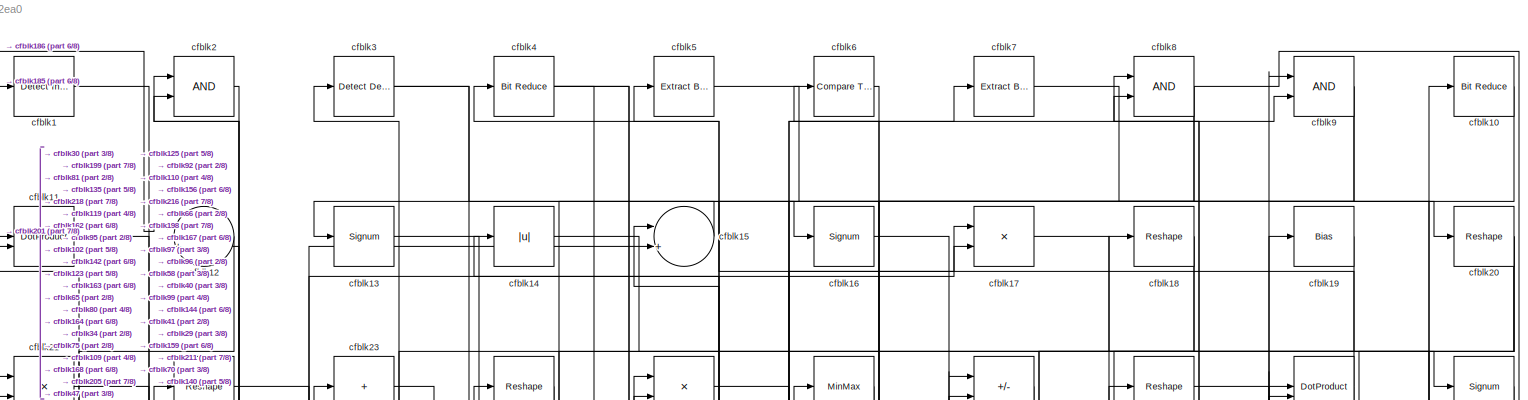
[diagram: root canvas - part 1/8, full width, top band]
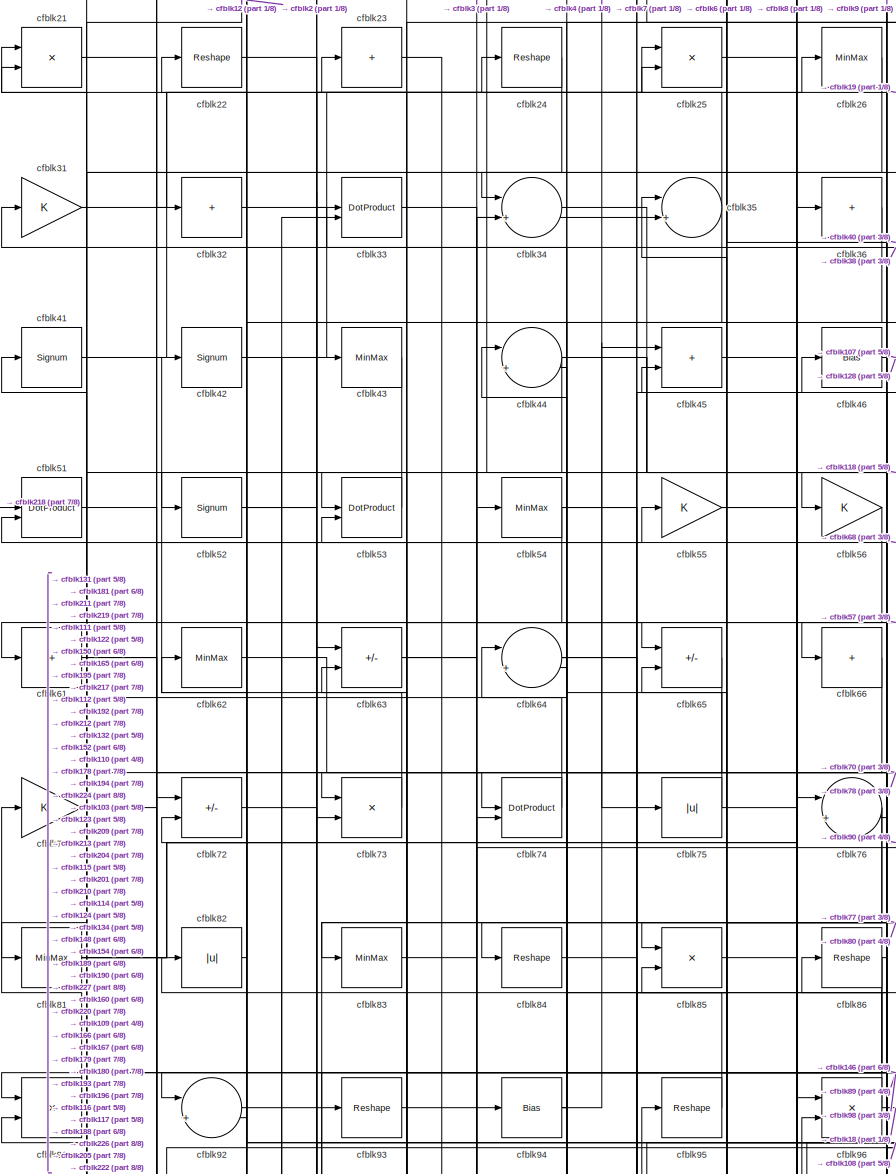
[diagram: root canvas - part 2/8, top left region]
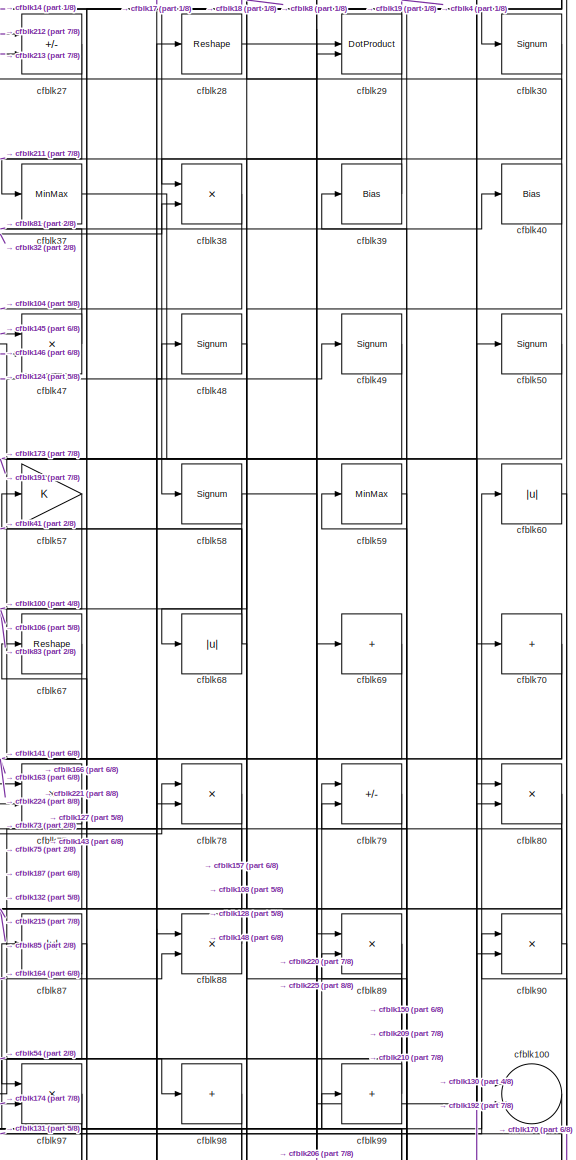
[diagram: root canvas - part 3/8, top right region]
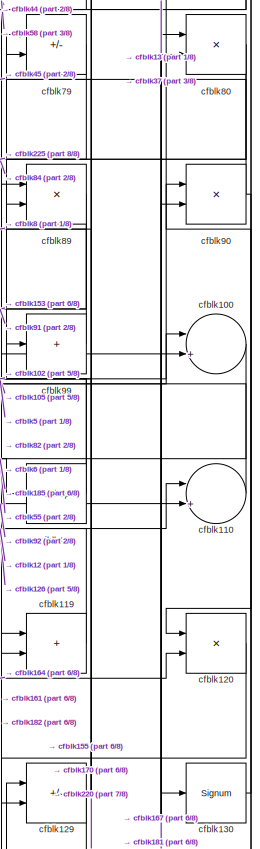
[diagram: root canvas - part 4/8, middle right region]
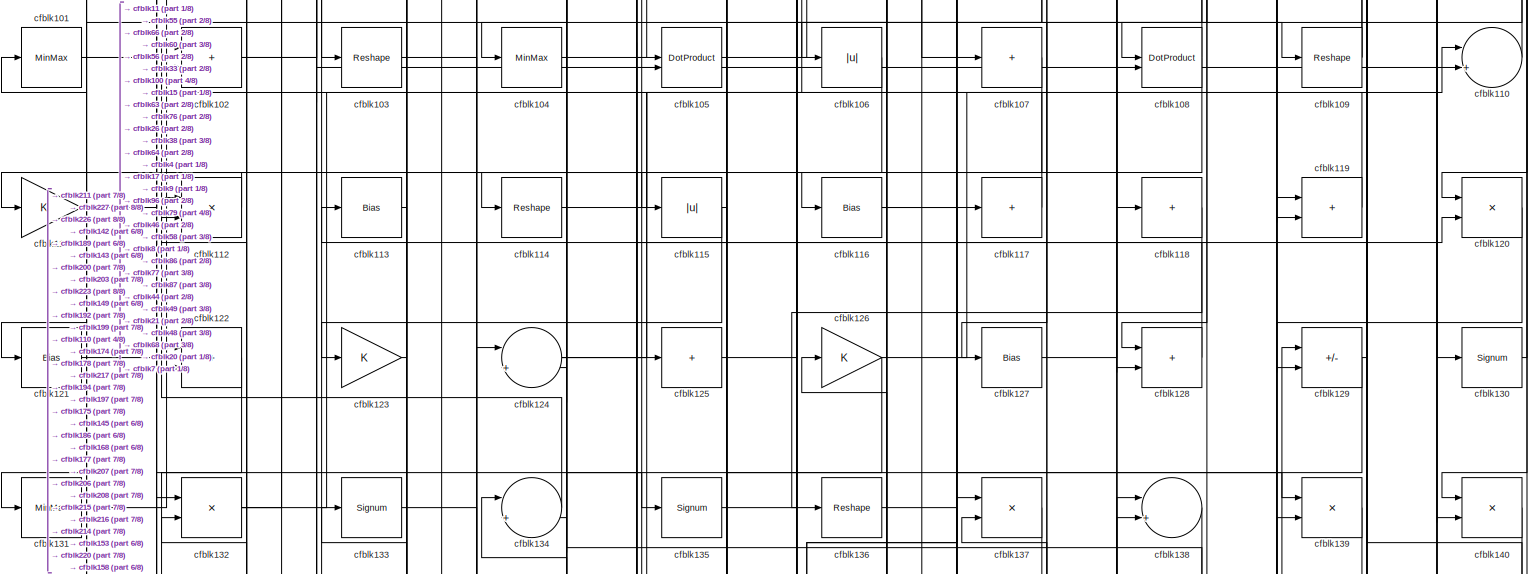
[diagram: root canvas - part 5/8, full width, middle band]
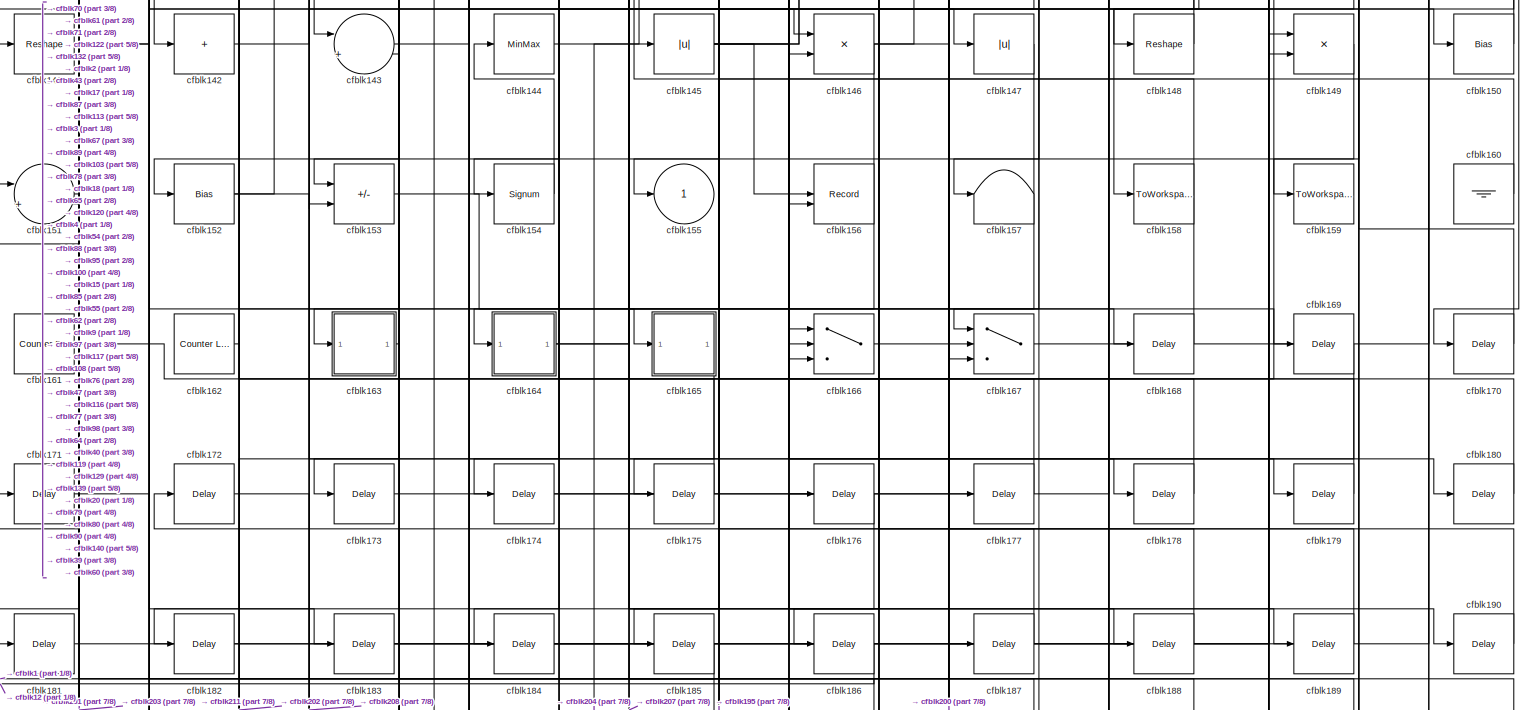
[diagram: root canvas - part 6/8, full width, bottom band]
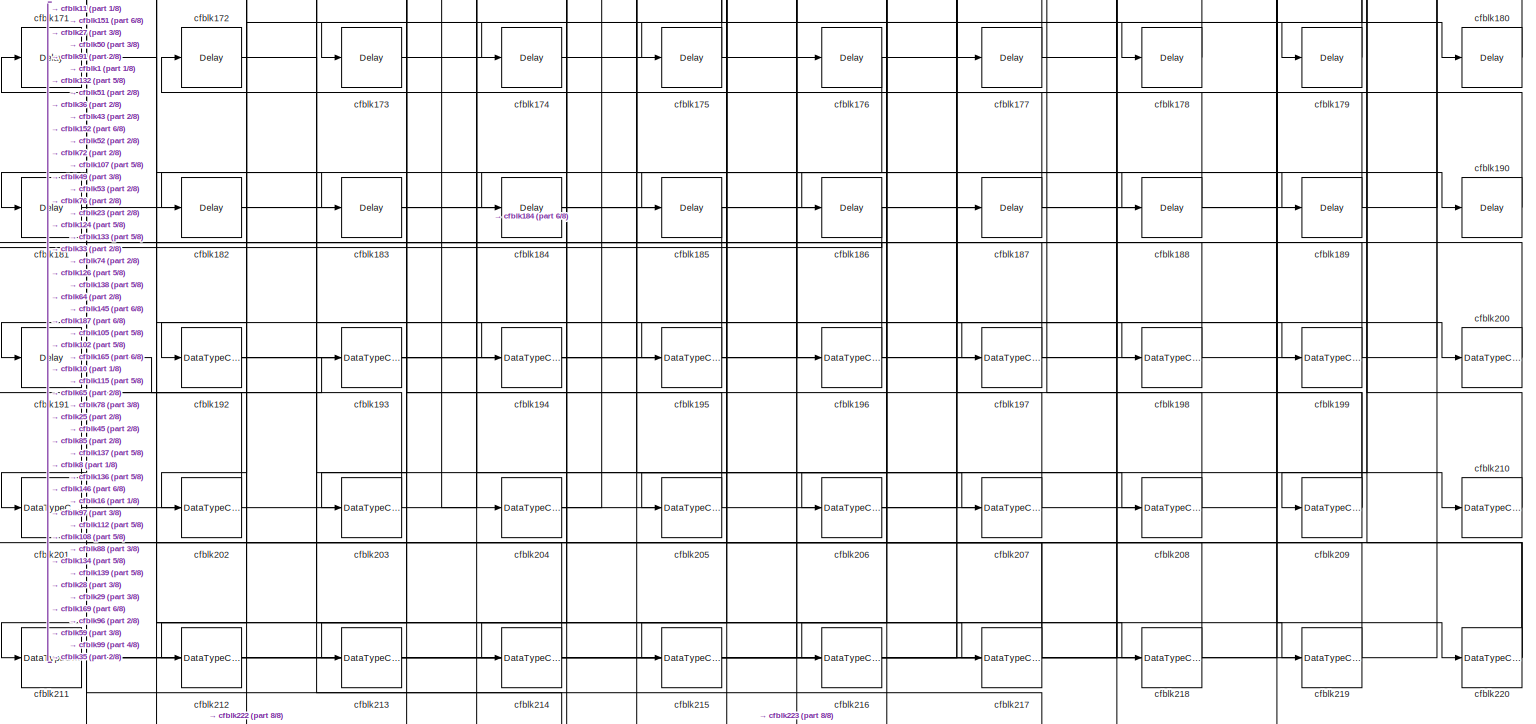
[diagram: root canvas - part 7/8, full width, bottom band]
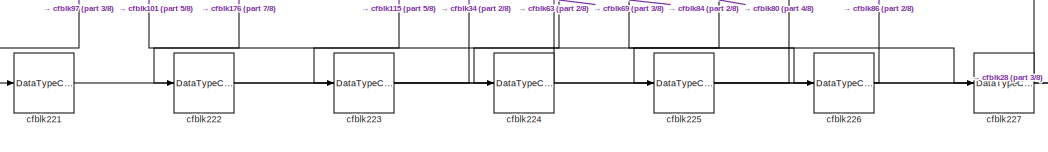
[diagram: root canvas - part 8/8, bottom center region]
MODEL slx_d02444b02ea0
KIND model
CONFIG AbsTol = auto
CONFIG EnableMultiTasking = off
CONFIG FixedStep = auto
CONFIG MaxStep = auto
CONFIG MinStep = auto
CONFIG RelTol = 1e-3
CONFIG SampleTimeConstraint = Unconstrained
CONFIG SolverName = VariableStepAuto
CONFIG StartTime = 0.0
CONFIG StopTime = 10.0
BLOCK [Reference] cfblk1  REF=simulink/Logic and Bit
Operations/Detect
Increase
  LibrarySourceBlock = hdlsllib/Logic and Bit\nOperations/Detect\nIncrease
  SourceBlock = simulink/Logic and Bit\nOperations/Detect\nIncrease
  SourceType = Detect Increase
BLOCK [Reference] cfblk10  REF=hdlsllib/Logic and Bit
Operations/Bit Reduce
  SourceBlock = hdlsllib/Logic and Bit\nOperations/Bit Reduce
  SourceType = Bit Reduce
BLOCK [Sum] cfblk100
  Inputs = |++
BLOCK [MinMax] cfblk101
BLOCK [Sum] cfblk102
  IconShape = rectangular
BLOCK [Reshape] cfblk103
BLOCK [MinMax] cfblk104
BLOCK [DotProduct] cfblk105
  OutDataTypeStr = Inherit: Inherit via internal rule
BLOCK [Abs] cfblk106
  SaturateOnIntegerOverflow = off
BLOCK [Sum] cfblk107
  IconShape = rectangular
  Inputs = +
BLOCK [DotProduct] cfblk108
  OutDataTypeStr = Inherit: Inherit via internal rule
BLOCK [Reshape] cfblk109
BLOCK [DotProduct] cfblk11
  OutDataTypeStr = Inherit: Inherit via internal rule
BLOCK [Sum] cfblk110
  Inputs = |++
BLOCK [Gain] cfblk111
BLOCK [Product] cfblk112
  Inputs = */
  RndMeth = Zero
  SaturateOnIntegerOverflow = on
BLOCK [Bias] cfblk113
  Bias = 0.0
  SaturateOnIntegerOverflow = off
BLOCK [Reshape] cfblk114
BLOCK [Abs] cfblk115
  SaturateOnIntegerOverflow = off
BLOCK [Bias] cfblk116
  Bias = 0.0
  SaturateOnIntegerOverflow = off
BLOCK [Sum] cfblk117
  IconShape = rectangular
  Inputs = +
BLOCK [Sum] cfblk118
  IconShape = rectangular
  Inputs = +
BLOCK [Sum] cfblk119
  IconShape = rectangular
BLOCK [Sum] cfblk12
  Inputs = |++
BLOCK [Product] cfblk120
  Inputs = */
  RndMeth = Zero
  SaturateOnIntegerOverflow = on
BLOCK [Bias] cfblk121
  Bias = 0.0
  SaturateOnIntegerOverflow = off
BLOCK [Sum] cfblk122
  IconShape = rectangular
BLOCK [Gain] cfblk123
BLOCK [Sum] cfblk124
  Inputs = |++
BLOCK [Sum] cfblk125
  IconShape = rectangular
  Inputs = +
BLOCK [Gain] cfblk126
BLOCK [Bias] cfblk127
  Bias = 0.0
  SaturateOnIntegerOverflow = off
BLOCK [Sum] cfblk128
  IconShape = rectangular
BLOCK [Sum] cfblk129
  IconShape = rectangular
  Inputs = +-
BLOCK [Signum] cfblk13
BLOCK [Signum] cfblk130
BLOCK [MinMax] cfblk131
BLOCK [Product] cfblk132
  Inputs = */
  RndMeth = Zero
  SaturateOnIntegerOverflow = on
BLOCK [Signum] cfblk133
BLOCK [Sum] cfblk134
  Inputs = |++
BLOCK [Signum] cfblk135
BLOCK [Reshape] cfblk136
BLOCK [Product] cfblk137
  Inputs = */
  RndMeth = Zero
  SaturateOnIntegerOverflow = on
BLOCK [Sum] cfblk138
  Inputs = |++
BLOCK [Product] cfblk139
  Inputs = */
  RndMeth = Zero
  SaturateOnIntegerOverflow = on
BLOCK [Abs] cfblk14
  SaturateOnIntegerOverflow = off
BLOCK [Product] cfblk140
  Inputs = */
  RndMeth = Zero
  SaturateOnIntegerOverflow = on
BLOCK [Reshape] cfblk141
BLOCK [Sum] cfblk142
  IconShape = rectangular
  Inputs = +
BLOCK [Sum] cfblk143
  Inputs = |++
BLOCK [MinMax] cfblk144
BLOCK [Abs] cfblk145
  SaturateOnIntegerOverflow = off
BLOCK [Product] cfblk146
  Inputs = */
  RndMeth = Zero
  SaturateOnIntegerOverflow = on
BLOCK [Abs] cfblk147
  SaturateOnIntegerOverflow = off
BLOCK [Reshape] cfblk148
BLOCK [Product] cfblk149
  Inputs = */
  RndMeth = Zero
  SaturateOnIntegerOverflow = on
BLOCK [Sum] cfblk15
  Inputs = |++
BLOCK [Bias] cfblk150
  Bias = 0.0
  SaturateOnIntegerOverflow = off
BLOCK [Sum] cfblk151
  Inputs = |++
BLOCK [Bias] cfblk152
  Bias = 0.0
  SaturateOnIntegerOverflow = off
BLOCK [Sum] cfblk153
  IconShape = rectangular
  Inputs = +-
BLOCK [Signum] cfblk154
BLOCK [Outport] cfblk155
  VectorParamsAs1DForOutWhenUnconnected = off
BLOCK [Record] cfblk156
  CompatibilityTag = XY
  FileSettingsInternal = {"entries":[{"content":{"excelSettings":{"content":{},"type":"Streamout.ExcelSettings"}},"type":"Streamout.FileSettingStorage","uuid":""}],"packageUris":["http:\/\/schema.mathworks.com\/mf0\/streamout_blocks\/R2020a"],"version":"1.0"}
  Layout = [1 1]
  SignalsInternal = {"entries":[{"content":{"signals":[{"content":{"blockPath":[],"dimensions":[1],"domain":"","lineColor":"#a2142f","plots":[1],"port":1,"signalID":2860,"signalName":"XY Graph:1"},"type":"RecordBlkView.Signal","uuid":""},{"content":{"blockPath":[],"dimensions":[1],"domain":"","lineColor":"#139fff","plots":[1],"port":2,"signalID":2863,"signalName":"XY Graph:2"},"type":"RecordBlkView.Signal","uuid":""}...<+146ch>
  VisualizationBindings = {"xyplotplugin":{"info":[{"series":[{"bindingParametersList":[{"parameter":"X-Axis","signalID":2860,"signalName":"XY Graph:1"},{"parameter":"Y-Axis","signalID":2863,"signalName":"XY Graph:2"}],"seriesID":25122}],"subplotID":1}]}}
  st = -1
BLOCK [Terminator] cfblk157
BLOCK [ToWorkspace] cfblk158
  MaxDataPoints = inf
  SampleTime = -1
  SaveFormat = Timeseries
  VariableName = simout
BLOCK [ToWorkspace] cfblk159
  MaxDataPoints = inf
  SampleTime = -1
  SaveFormat = Timeseries
  VariableName = simout
BLOCK [Signum] cfblk16
BLOCK [Ground] cfblk160
BLOCK [Reference] cfblk161  REF=hdlsllib/Sources/Counter
Free-Running
  SourceBlock = hdlsllib/Sources/Counter\nFree-Running
  SourceType = Counter Free-Running
BLOCK [Reference] cfblk162  REF=hdlsllib/Sources/Counter
Limited
  SourceBlock = hdlsllib/Sources/Counter\nLimited
  SourceType = Counter Limited
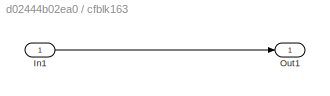
BLOCK [SubSystem] cfblk163
  LibrarySourceBlock = hdlsllib/Ports &\nSubsystems/Subsystem
BLOCK [Inport] cfblk163/In1
BLOCK [Outport] cfblk163/Out1
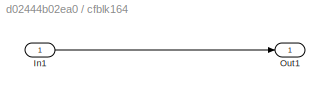
BLOCK [SubSystem] cfblk164
  LibrarySourceBlock = hdlsllib/Ports &\nSubsystems/Subsystem
BLOCK [Inport] cfblk164/In1
BLOCK [Outport] cfblk164/Out1
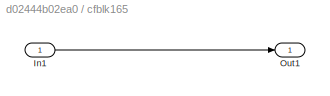
BLOCK [SubSystem] cfblk165
  LibrarySourceBlock = hdlsllib/Ports &\nSubsystems/Subsystem
BLOCK [Inport] cfblk165/In1
BLOCK [Outport] cfblk165/Out1
BLOCK [Switch] cfblk166
  InputSameDT = off
  SaturateOnIntegerOverflow = off
BLOCK [Switch] cfblk167
  InputSameDT = off
  SaturateOnIntegerOverflow = off
BLOCK [Delay] cfblk168
  InputPortMap = u0
  SampleTime = 1
BLOCK [Delay] cfblk169
  InputPortMap = u0
  SampleTime = 1
BLOCK [Product] cfblk17
  Inputs = */
  RndMeth = Zero
  SaturateOnIntegerOverflow = on
BLOCK [Delay] cfblk170
  InputPortMap = u0
  SampleTime = 1
BLOCK [Delay] cfblk171
  InputPortMap = u0
  SampleTime = 1
BLOCK [Delay] cfblk172
  InputPortMap = u0
  SampleTime = 1
BLOCK [Delay] cfblk173
  InputPortMap = u0
  SampleTime = 1
BLOCK [Delay] cfblk174
  InputPortMap = u0
  SampleTime = 1
BLOCK [Delay] cfblk175
  InputPortMap = u0
  SampleTime = 1
BLOCK [Delay] cfblk176
  InputPortMap = u0
  SampleTime = 1
BLOCK [Delay] cfblk177
  InputPortMap = u0
  SampleTime = 1
BLOCK [Delay] cfblk178
  InputPortMap = u0
  SampleTime = 1
BLOCK [Delay] cfblk179
  InputPortMap = u0
  SampleTime = 1
BLOCK [Reshape] cfblk18
BLOCK [Delay] cfblk180
  InputPortMap = u0
  SampleTime = 1
BLOCK [Delay] cfblk181
  InputPortMap = u0
  SampleTime = 1
BLOCK [Delay] cfblk182
  InputPortMap = u0
  SampleTime = 1
BLOCK [Delay] cfblk183
  InputPortMap = u0
  SampleTime = 1
BLOCK [Delay] cfblk184
  InputPortMap = u0
  SampleTime = 1
BLOCK [Delay] cfblk185
  InputPortMap = u0
  SampleTime = 1
BLOCK [Delay] cfblk186
  InputPortMap = u0
  SampleTime = 1
BLOCK [Delay] cfblk187
  InputPortMap = u0
  SampleTime = 1
BLOCK [Delay] cfblk188
  InputPortMap = u0
  SampleTime = 1
BLOCK [Delay] cfblk189
  InputPortMap = u0
  SampleTime = 1
BLOCK [Bias] cfblk19
  Bias = 0.0
  SaturateOnIntegerOverflow = off
BLOCK [Delay] cfblk190
  InputPortMap = u0
  SampleTime = 1
BLOCK [Delay] cfblk191
  InputPortMap = u0
  SampleTime = 1
BLOCK [DataTypeConversion] cfblk192
  RndMeth = Floor
  SaturateOnIntegerOverflow = off
BLOCK [DataTypeConversion] cfblk193
  OutDataTypeStr = uint8
  RndMeth = Floor
  SaturateOnIntegerOverflow = off
BLOCK [DataTypeConversion] cfblk194
  OutDataTypeStr = uint8
  RndMeth = Floor
  SaturateOnIntegerOverflow = off
BLOCK [DataTypeConversion] cfblk195
  OutDataTypeStr = uint8
  RndMeth = Floor
  SaturateOnIntegerOverflow = off
BLOCK [DataTypeConversion] cfblk196
  OutDataTypeStr = uint8
  RndMeth = Floor
  SaturateOnIntegerOverflow = off
BLOCK [DataTypeConversion] cfblk197
  OutDataTypeStr = uint8
  RndMeth = Floor
  SaturateOnIntegerOverflow = off
BLOCK [DataTypeConversion] cfblk198
  OutDataTypeStr = uint8
  RndMeth = Floor
  SaturateOnIntegerOverflow = off
BLOCK [DataTypeConversion] cfblk199
  OutDataTypeStr = uint8
  RndMeth = Floor
  SaturateOnIntegerOverflow = off
BLOCK [Logic] cfblk2
  AllPortsSameDT = off
  OutDataTypeStr = boolean
BLOCK [Reshape] cfblk20
BLOCK [DataTypeConversion] cfblk200
  OutDataTypeStr = uint8
  RndMeth = Floor
  SaturateOnIntegerOverflow = off
BLOCK [DataTypeConversion] cfblk201
  RndMeth = Floor
  SaturateOnIntegerOverflow = off
BLOCK [DataTypeConversion] cfblk202
  OutDataTypeStr = uint8
  RndMeth = Floor
  SaturateOnIntegerOverflow = off
BLOCK [DataTypeConversion] cfblk203
  OutDataTypeStr = uint8
  RndMeth = Floor
  SaturateOnIntegerOverflow = off
BLOCK [DataTypeConversion] cfblk204
  RndMeth = Floor
  SaturateOnIntegerOverflow = off
BLOCK [DataTypeConversion] cfblk205
  OutDataTypeStr = uint8
  RndMeth = Floor
  SaturateOnIntegerOverflow = off
BLOCK [DataTypeConversion] cfblk206
  OutDataTypeStr = uint8
  RndMeth = Floor
  SaturateOnIntegerOverflow = off
BLOCK [DataTypeConversion] cfblk207
  OutDataTypeStr = uint8
  RndMeth = Floor
  SaturateOnIntegerOverflow = off
BLOCK [DataTypeConversion] cfblk208
  OutDataTypeStr = uint8
  RndMeth = Floor
  SaturateOnIntegerOverflow = off
BLOCK [DataTypeConversion] cfblk209
  RndMeth = Floor
  SaturateOnIntegerOverflow = off
BLOCK [Product] cfblk21
  Inputs = */
  RndMeth = Zero
  SaturateOnIntegerOverflow = on
BLOCK [DataTypeConversion] cfblk210
  OutDataTypeStr = uint8
  RndMeth = Floor
  SaturateOnIntegerOverflow = off
BLOCK [DataTypeConversion] cfblk211
  RndMeth = Floor
  SaturateOnIntegerOverflow = off
BLOCK [DataTypeConversion] cfblk212
  OutDataTypeStr = uint8
  RndMeth = Floor
  SaturateOnIntegerOverflow = off
BLOCK [DataTypeConversion] cfblk213
  OutDataTypeStr = uint8
  RndMeth = Floor
  SaturateOnIntegerOverflow = off
BLOCK [DataTypeConversion] cfblk214
  OutDataTypeStr = uint8
  RndMeth = Floor
  SaturateOnIntegerOverflow = off
BLOCK [DataTypeConversion] cfblk215
  OutDataTypeStr = uint8
  RndMeth = Floor
  SaturateOnIntegerOverflow = off
BLOCK [DataTypeConversion] cfblk216
  OutDataTypeStr = uint8
  RndMeth = Floor
  SaturateOnIntegerOverflow = off
BLOCK [DataTypeConversion] cfblk217
  RndMeth = Floor
  SaturateOnIntegerOverflow = off
BLOCK [DataTypeConversion] cfblk218
  OutDataTypeStr = uint8
  RndMeth = Floor
  SaturateOnIntegerOverflow = off
BLOCK [DataTypeConversion] cfblk219
  OutDataTypeStr = uint8
  RndMeth = Floor
  SaturateOnIntegerOverflow = off
BLOCK [Reshape] cfblk22
BLOCK [DataTypeConversion] cfblk220
  RndMeth = Floor
  SaturateOnIntegerOverflow = off
BLOCK [DataTypeConversion] cfblk221
  OutDataTypeStr = uint8
  RndMeth = Floor
  SaturateOnIntegerOverflow = off
BLOCK [DataTypeConversion] cfblk222
  OutDataTypeStr = uint8
  RndMeth = Floor
  SaturateOnIntegerOverflow = off
BLOCK [DataTypeConversion] cfblk223
  OutDataTypeStr = uint8
  RndMeth = Floor
  SaturateOnIntegerOverflow = off
BLOCK [DataTypeConversion] cfblk224
  OutDataTypeStr = uint8
  RndMeth = Floor
  SaturateOnIntegerOverflow = off
BLOCK [DataTypeConversion] cfblk225
  OutDataTypeStr = uint8
  RndMeth = Floor
  SaturateOnIntegerOverflow = off
BLOCK [DataTypeConversion] cfblk226
  OutDataTypeStr = uint8
  RndMeth = Floor
  SaturateOnIntegerOverflow = off
BLOCK [DataTypeConversion] cfblk227
  OutDataTypeStr = uint8
  RndMeth = Floor
  SaturateOnIntegerOverflow = off
BLOCK [Sum] cfblk23
  IconShape = rectangular
  Inputs = +
BLOCK [Reshape] cfblk24
BLOCK [Product] cfblk25
  Inputs = */
  RndMeth = Zero
  SaturateOnIntegerOverflow = on
BLOCK [MinMax] cfblk26
BLOCK [Sum] cfblk27
  IconShape = rectangular
  Inputs = +-
BLOCK [Reshape] cfblk28
BLOCK [DotProduct] cfblk29
  OutDataTypeStr = Inherit: Inherit via internal rule
BLOCK [Reference] cfblk3  REF=simulink/Logic and Bit
Operations/Detect
Decrease
  LibrarySourceBlock = hdlsllib/Logic and Bit\nOperations/Detect\nDecrease
  SourceBlock = simulink/Logic and Bit\nOperations/Detect\nDecrease
  SourceType = Detect Decrease
BLOCK [Signum] cfblk30
BLOCK [Gain] cfblk31
BLOCK [Sum] cfblk32
  IconShape = rectangular
  Inputs = +
BLOCK [DotProduct] cfblk33
  OutDataTypeStr = Inherit: Inherit via internal rule
BLOCK [Sum] cfblk34
  Inputs = |++
BLOCK [Sum] cfblk35
  Inputs = |++
BLOCK [Sum] cfblk36
  IconShape = rectangular
  Inputs = +
BLOCK [MinMax] cfblk37
BLOCK [Product] cfblk38
  Inputs = */
  RndMeth = Zero
  SaturateOnIntegerOverflow = on
BLOCK [Bias] cfblk39
  Bias = 0.0
  SaturateOnIntegerOverflow = off
BLOCK [Reference] cfblk4  REF=hdlsllib/Logic and Bit
Operations/Bit Reduce
  SourceBlock = hdlsllib/Logic and Bit\nOperations/Bit Reduce
  SourceType = Bit Reduce
BLOCK [Bias] cfblk40
  Bias = 0.0
  SaturateOnIntegerOverflow = off
BLOCK [Signum] cfblk41
BLOCK [Signum] cfblk42
BLOCK [MinMax] cfblk43
BLOCK [Sum] cfblk44
  Inputs = |++
BLOCK [Sum] cfblk45
  IconShape = rectangular
BLOCK [Bias] cfblk46
  Bias = 0.0
  SaturateOnIntegerOverflow = off
BLOCK [Product] cfblk47
  Inputs = */
  RndMeth = Zero
  SaturateOnIntegerOverflow = on
BLOCK [Signum] cfblk48
BLOCK [Signum] cfblk49
BLOCK [Reference] cfblk5  REF=simulink/Logic and Bit
Operations/Extract Bits
  LibrarySourceBlock = hdlsllib/Logic and Bit\nOperations/Extract Bits
  SourceBlock = simulink/Logic and Bit\nOperations/Extract Bits
  SourceType = Extract Bits
BLOCK [Signum] cfblk50
BLOCK [DotProduct] cfblk51
  OutDataTypeStr = Inherit: Inherit via internal rule
BLOCK [Signum] cfblk52
BLOCK [DotProduct] cfblk53
  OutDataTypeStr = Inherit: Inherit via internal rule
BLOCK [MinMax] cfblk54
BLOCK [Gain] cfblk55
BLOCK [Gain] cfblk56
BLOCK [Gain] cfblk57
BLOCK [Signum] cfblk58
BLOCK [MinMax] cfblk59
BLOCK [Reference] cfblk6  REF=hdlsllib/Logic and Bit
Operations/Compare
To Zero
  SourceBlock = hdlsllib/Logic and Bit\nOperations/Compare\nTo Zero
  SourceType = Compare To Zero
BLOCK [Abs] cfblk60
  SaturateOnIntegerOverflow = off
BLOCK [Sum] cfblk61
  IconShape = rectangular
  Inputs = +
BLOCK [MinMax] cfblk62
BLOCK [Sum] cfblk63
  IconShape = rectangular
  Inputs = +-
BLOCK [Sum] cfblk64
  Inputs = |++
BLOCK [Sum] cfblk65
  IconShape = rectangular
  Inputs = +-
BLOCK [Sum] cfblk66
  IconShape = rectangular
  Inputs = +
BLOCK [Reshape] cfblk67
BLOCK [Abs] cfblk68
  SaturateOnIntegerOverflow = off
BLOCK [Sum] cfblk69
  IconShape = rectangular
  Inputs = +
BLOCK [Reference] cfblk7  REF=simulink/Logic and Bit
Operations/Extract Bits
  LibrarySourceBlock = hdlsllib/Logic and Bit\nOperations/Extract Bits
  SourceBlock = simulink/Logic and Bit\nOperations/Extract Bits
  SourceType = Extract Bits
BLOCK [Sum] cfblk70
  IconShape = rectangular
  Inputs = +
BLOCK [Gain] cfblk71
BLOCK [Sum] cfblk72
  IconShape = rectangular
  Inputs = +-
BLOCK [Product] cfblk73
  Inputs = */
  RndMeth = Zero
  SaturateOnIntegerOverflow = on
BLOCK [DotProduct] cfblk74
  OutDataTypeStr = Inherit: Inherit via internal rule
BLOCK [Abs] cfblk75
  SaturateOnIntegerOverflow = off
BLOCK [Sum] cfblk76
  Inputs = |++
BLOCK [Product] cfblk77
  Inputs = */
  RndMeth = Zero
  SaturateOnIntegerOverflow = on
BLOCK [Product] cfblk78
  Inputs = */
  RndMeth = Zero
  SaturateOnIntegerOverflow = on
BLOCK [Sum] cfblk79
  IconShape = rectangular
  Inputs = +-
BLOCK [Logic] cfblk8
  AllPortsSameDT = off
  OutDataTypeStr = boolean
BLOCK [Product] cfblk80
  Inputs = */
  RndMeth = Zero
  SaturateOnIntegerOverflow = on
BLOCK [MinMax] cfblk81
BLOCK [Abs] cfblk82
  SaturateOnIntegerOverflow = off
BLOCK [MinMax] cfblk83
BLOCK [Reshape] cfblk84
BLOCK [Product] cfblk85
  Inputs = */
  RndMeth = Zero
  SaturateOnIntegerOverflow = on
BLOCK [Reshape] cfblk86
BLOCK [Abs] cfblk87
  SaturateOnIntegerOverflow = off
BLOCK [Product] cfblk88
  Inputs = */
  RndMeth = Zero
  SaturateOnIntegerOverflow = on
BLOCK [Product] cfblk89
  Inputs = */
  RndMeth = Zero
  SaturateOnIntegerOverflow = on
BLOCK [Logic] cfblk9
  AllPortsSameDT = off
  OutDataTypeStr = boolean
BLOCK [Product] cfblk90
  Inputs = */
  RndMeth = Zero
  SaturateOnIntegerOverflow = on
BLOCK [Product] cfblk91
  Inputs = */
  RndMeth = Zero
  SaturateOnIntegerOverflow = on
BLOCK [Sum] cfblk92
  Inputs = |++
BLOCK [Reshape] cfblk93
BLOCK [Bias] cfblk94
  Bias = 0.0
  SaturateOnIntegerOverflow = off
BLOCK [Reshape] cfblk95
BLOCK [Product] cfblk96
  Inputs = */
  RndMeth = Zero
  SaturateOnIntegerOverflow = on
BLOCK [Product] cfblk97
  Inputs = */
  RndMeth = Zero
  SaturateOnIntegerOverflow = on
BLOCK [Sum] cfblk98
  IconShape = rectangular
  Inputs = +
BLOCK [Sum] cfblk99
  IconShape = rectangular
  Inputs = +
LINE cfblk100:1 -> cfblk185:1
LINE cfblk101:1 -> cfblk226:1
NET cfblk102:1 -> cfblk100:1, cfblk15:2
LINE cfblk103:1 -> cfblk149:2
LINE cfblk104:1 -> cfblk87:1
LINE cfblk105:1 -> cfblk79:1
LINE cfblk106:1 -> cfblk121:1
LINE cfblk107:1 -> cfblk203:1
NET cfblk108:1 -> cfblk186:1, cfblk21:2
NET cfblk109:1 -> cfblk5:1, cfblk82:1
LINE cfblk10:1 -> cfblk205:1
LINE cfblk110:1 -> cfblk6:1
LINE cfblk111:1 -> cfblk55:1
LINE cfblk112:1 -> cfblk111:1
LINE cfblk113:1 -> cfblk143:2
LINE cfblk114:1 -> cfblk76:1
NET cfblk115:1 -> cfblk175:1, cfblk223:1
NET cfblk116:1 -> cfblk139:1, cfblk168:1
LINE cfblk117:1 -> cfblk46:1
LINE cfblk118:1 -> cfblk136:1
LINE cfblk119:1 -> cfblk12:2
LINE cfblk11:1 -> cfblk135:1
LINE cfblk120:1 -> cfblk129:2
LINE cfblk121:1 -> cfblk122:1
LINE cfblk122:1 -> cfblk142:1
LINE cfblk123:1 -> cfblk63:2
NET cfblk124:1 -> cfblk48:1, cfblk96:2
LINE cfblk125:1 -> cfblk17:1
NET cfblk126:1 -> cfblk110:1, cfblk174:1
LINE cfblk127:1 -> cfblk49:1
LINE cfblk128:1 -> cfblk113:1
NET cfblk129:1 -> cfblk155:1, cfblk89:2
LINE cfblk12:1 -> cfblk81:1
LINE cfblk130:1 -> cfblk90:1
LINE cfblk131:1 -> cfblk60:1
NET cfblk132:1 -> cfblk33:2, cfblk77:2
LINE cfblk133:1 -> cfblk199:1
LINE cfblk134:1 -> cfblk102:1
LINE cfblk135:1 -> cfblk9:2
LINE cfblk136:1 -> cfblk177:1
LINE cfblk137:1 -> cfblk206:1
LINE cfblk138:1 -> cfblk214:1
LINE cfblk139:1 -> cfblk153:2
LINE cfblk13:1 -> cfblk80:1
LINE cfblk140:1 -> cfblk158:1
NET cfblk141:1 -> cfblk147:1, cfblk183:1
LINE cfblk142:1 -> cfblk17:2
LINE cfblk143:1 -> cfblk78:1
LINE cfblk144:1 -> cfblk9:1
NET cfblk145:1 -> cfblk117:1, cfblk156:1, cfblk188:1, cfblk47:1
NET cfblk146:1 -> cfblk182:1, cfblk200:1, cfblk47:2
LINE cfblk147:1 -> cfblk184:1
LINE cfblk148:1 -> cfblk64:1
LINE cfblk149:1 -> cfblk152:1
LINE cfblk14:1 -> cfblk70:1
LINE cfblk150:1 -> cfblk39:1
LINE cfblk151:1 -> cfblk201:1
NET cfblk152:1 -> cfblk208:1, cfblk43:1
LINE cfblk153:1 -> cfblk166:2
LINE cfblk154:1 -> cfblk144:1
LINE cfblk15:1 -> cfblk13:1
LINE cfblk160:1 -> cfblk95:1
LINE cfblk161:1 -> cfblk129:1
LINE cfblk162:1 -> cfblk2:2
LINE cfblk163/In1:1 -> cfblk163/Out1:1
LINE cfblk163:1 -> cfblk3:1
LINE cfblk164/In1:1 -> cfblk164/Out1:1
NET cfblk164:1 -> cfblk120:2, cfblk88:2
LINE cfblk165/In1:1 -> cfblk165/Out1:1
LINE cfblk165:1 -> cfblk202:1
LINE cfblk166:1 -> cfblk169:1
LINE cfblk167:1 -> cfblk90:2
LINE cfblk168:1 -> cfblk15:1
LINE cfblk169:1 -> cfblk195:1
LINE cfblk16:1 -> cfblk198:1
LINE cfblk170:1 -> cfblk79:2
LINE cfblk171:1 -> cfblk197:1
LINE cfblk172:1 -> cfblk219:1
LINE cfblk173:1 -> cfblk88:1
LINE cfblk174:1 -> cfblk97:2
LINE cfblk175:1 -> cfblk102:2
LINE cfblk176:1 -> cfblk222:1
LINE cfblk177:1 -> cfblk112:2
LINE cfblk178:1 -> cfblk134:1
LINE cfblk179:1 -> cfblk96:1
LINE cfblk17:1 -> cfblk30:1
LINE cfblk180:1 -> cfblk35:1
LINE cfblk181:1 -> cfblk80:2
LINE cfblk182:1 -> cfblk119:1
LINE cfblk183:1 -> cfblk149:1
LINE cfblk184:1 -> cfblk207:1
LINE cfblk185:1 -> cfblk1:1
LINE cfblk186:1 -> cfblk12:1
LINE cfblk187:1 -> cfblk77:1
LINE cfblk188:1 -> cfblk76:2
LINE cfblk189:1 -> cfblk132:2
NET cfblk18:1 -> cfblk164:1, cfblk97:1
LINE cfblk190:1 -> cfblk85:2
LINE cfblk191:1 -> cfblk193:1
NET cfblk192:1 -> cfblk108:2, cfblk124:1, cfblk50:1
LINE cfblk193:1 -> cfblk36:1
LINE cfblk194:1 -> cfblk105:2
LINE cfblk195:1 -> cfblk72:1
LINE cfblk196:1 -> cfblk72:2
LINE cfblk197:1 -> cfblk105:1
LINE cfblk198:1 -> cfblk171:1
LINE cfblk199:1 -> cfblk11:2
LINE cfblk19:1 -> cfblk58:1
LINE cfblk1:1 -> cfblk218:1
LINE cfblk200:1 -> cfblk133:1
NET cfblk201:1 -> cfblk11:1, cfblk74:2
LINE cfblk202:1 -> cfblk151:1
LINE cfblk203:1 -> cfblk151:2
NET cfblk204:1 -> cfblk145:1, cfblk187:1
LINE cfblk205:1 -> cfblk23:1
LINE cfblk206:1 -> cfblk29:2
LINE cfblk207:1 -> cfblk137:1
LINE cfblk208:1 -> cfblk137:2
NET cfblk209:1 -> cfblk29:1, cfblk53:2
NET cfblk20:1 -> cfblk123:1, cfblk159:1, cfblk167:1
LINE cfblk210:1 -> cfblk59:1
NET cfblk211:1 -> cfblk10:1, cfblk139:2, cfblk146:2, cfblk91:2
LINE cfblk212:1 -> cfblk27:1
LINE cfblk213:1 -> cfblk27:2
LINE cfblk214:1 -> cfblk172:1
LINE cfblk215:1 -> cfblk138:1
LINE cfblk216:1 -> cfblk138:2
NET cfblk217:1 -> cfblk132:1, cfblk64:2
LINE cfblk218:1 -> cfblk51:1
LINE cfblk219:1 -> cfblk51:2
LINE cfblk21:1 -> cfblk32:1
NET cfblk220:1 -> cfblk126:1, cfblk65:2, cfblk99:1
LINE cfblk221:1 -> cfblk28:1
LINE cfblk222:1 -> cfblk34:2
LINE cfblk223:1 -> cfblk176:1
LINE cfblk224:1 -> cfblk63:1
LINE cfblk225:1 -> cfblk69:1
LINE cfblk226:1 -> cfblk86:1
LINE cfblk227:1 -> cfblk101:1
LINE cfblk22:1 -> cfblk93:1
LINE cfblk23:1 -> cfblk204:1
LINE cfblk24:1 -> cfblk61:1
LINE cfblk25:1 -> cfblk180:1
LINE cfblk26:1 -> cfblk114:1
LINE cfblk27:1 -> cfblk211:1
LINE cfblk28:1 -> cfblk220:1
NET cfblk29:1 -> cfblk4:1, cfblk68:1
LINE cfblk2:1 -> cfblk92:2
LINE cfblk30:1 -> cfblk38:1
LINE cfblk31:1 -> cfblk25:2
LINE cfblk32:1 -> cfblk38:2
LINE cfblk33:1 -> cfblk210:1
LINE cfblk34:1 -> cfblk56:1
NET cfblk35:1 -> cfblk22:1, cfblk73:2
LINE cfblk36:1 -> cfblk192:1
LINE cfblk37:1 -> cfblk130:1
LINE cfblk38:1 -> cfblk104:1
LINE cfblk39:1 -> cfblk37:1
NET cfblk3:1 -> cfblk16:1, cfblk65:1
NET cfblk40:1 -> cfblk148:1, cfblk8:2
LINE cfblk41:1 -> cfblk19:1
NET cfblk42:1 -> cfblk24:1, cfblk25:1
LINE cfblk43:1 -> cfblk212:1
NET cfblk44:1 -> cfblk118:1, cfblk53:1, cfblk89:1
LINE cfblk45:1 -> cfblk179:1
NET cfblk46:1 -> cfblk107:1, cfblk128:2
LINE cfblk47:1 -> cfblk14:1
LINE cfblk48:1 -> cfblk128:1
LINE cfblk49:1 -> cfblk173:1
NET cfblk4:1 -> cfblk125:1, cfblk167:2, cfblk75:1
LINE cfblk50:1 -> cfblk191:1
LINE cfblk51:1 -> cfblk217:1
NET cfblk52:1 -> cfblk178:1, cfblk26:1
LINE cfblk53:1 -> cfblk52:1
NET cfblk54:1 -> cfblk146:1, cfblk181:1, cfblk98:1
NET cfblk55:1 -> cfblk109:1, cfblk167:3
LINE cfblk56:1 -> cfblk112:1
LINE cfblk57:1 -> cfblk83:1
NET cfblk58:1 -> cfblk100:2, cfblk106:1
LINE cfblk59:1 -> cfblk209:1
LINE cfblk5:1 -> cfblk20:1
LINE cfblk60:1 -> cfblk170:1
NET cfblk61:1 -> cfblk150:1, cfblk74:1
LINE cfblk62:1 -> cfblk166:1
NET cfblk63:1 -> cfblk115:1, cfblk35:2
NET cfblk64:1 -> cfblk134:2, cfblk189:1, cfblk190:1
LINE cfblk65:1 -> cfblk154:1
LINE cfblk66:1 -> cfblk122:2
LINE cfblk67:1 -> cfblk163:1
NET cfblk68:1 -> cfblk108:1, cfblk41:1, cfblk57:1
LINE cfblk69:1 -> cfblk224:1
LINE cfblk6:1 -> cfblk66:1
NET cfblk70:1 -> cfblk141:1, cfblk73:1
LINE cfblk71:1 -> cfblk165:1
LINE cfblk72:1 -> cfblk194:1
LINE cfblk73:1 -> cfblk42:1
LINE cfblk74:1 -> cfblk21:1
NET cfblk75:1 -> cfblk31:1, cfblk78:2
NET cfblk76:1 -> cfblk103:1, cfblk213:1
LINE cfblk77:1 -> cfblk85:1
LINE cfblk78:1 -> cfblk215:1
LINE cfblk79:1 -> cfblk119:2
LINE cfblk7:1 -> cfblk140:2
NET cfblk80:1 -> cfblk225:1, cfblk84:1
NET cfblk81:1 -> cfblk33:1, cfblk40:1, cfblk7:1
LINE cfblk82:1 -> cfblk62:1
LINE cfblk83:1 -> cfblk54:1
LINE cfblk84:1 -> cfblk227:1
LINE cfblk85:1 -> cfblk196:1
NET cfblk86:1 -> cfblk116:1, cfblk124:2, cfblk131:1
NET cfblk87:1 -> cfblk127:1, cfblk143:1
LINE cfblk88:1 -> cfblk67:1
NET cfblk89:1 -> cfblk153:1, cfblk91:1
NET cfblk8:1 -> cfblk140:1, cfblk216:1, cfblk34:1
NET cfblk90:1 -> cfblk120:1, cfblk45:2
LINE cfblk91:1 -> cfblk71:1
LINE cfblk92:1 -> cfblk110:2
LINE cfblk93:1 -> cfblk94:1
NET cfblk94:1 -> cfblk44:1, cfblk45:1
LINE cfblk95:1 -> cfblk2:1
NET cfblk96:1 -> cfblk18:1, cfblk44:2
NET cfblk97:1 -> cfblk166:3, cfblk221:1
LINE cfblk98:1 -> cfblk157:1
LINE cfblk99:1 -> cfblk8:1
NET cfblk9:1 -> cfblk156:2, cfblk92:1
note: NET lines group one-source signal fan-out (src -> all destinations, sorted); 1:1 wires keep LINE
